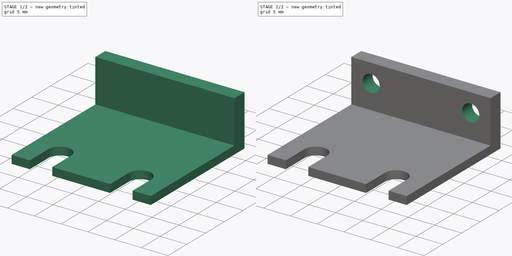
[diagram: build sequence overview — one tinted view per stage of 2, left to right]
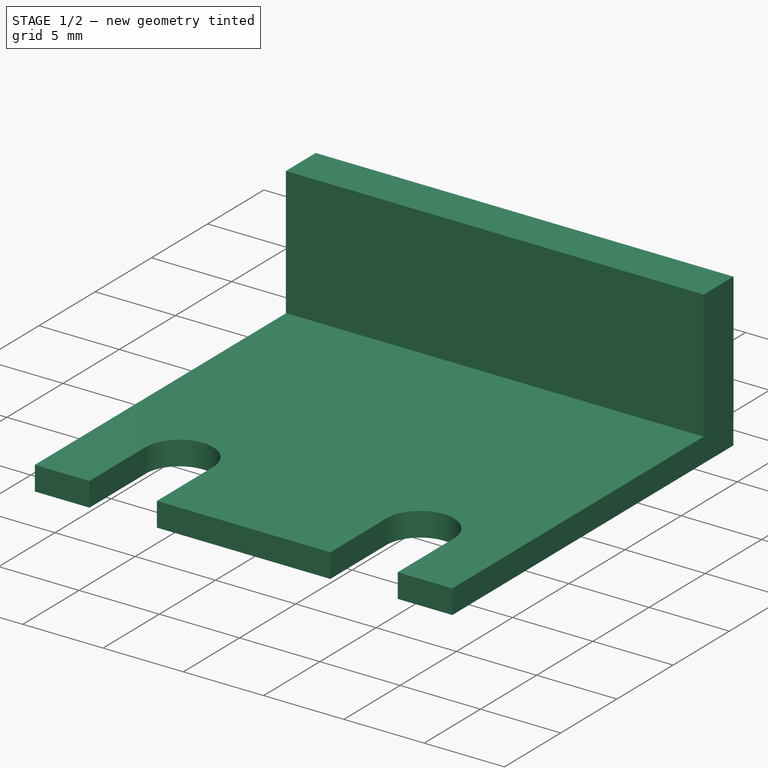
[diagram: stage 1 of 2 — iso view after this stage's code; geometry added in this stage tinted green]
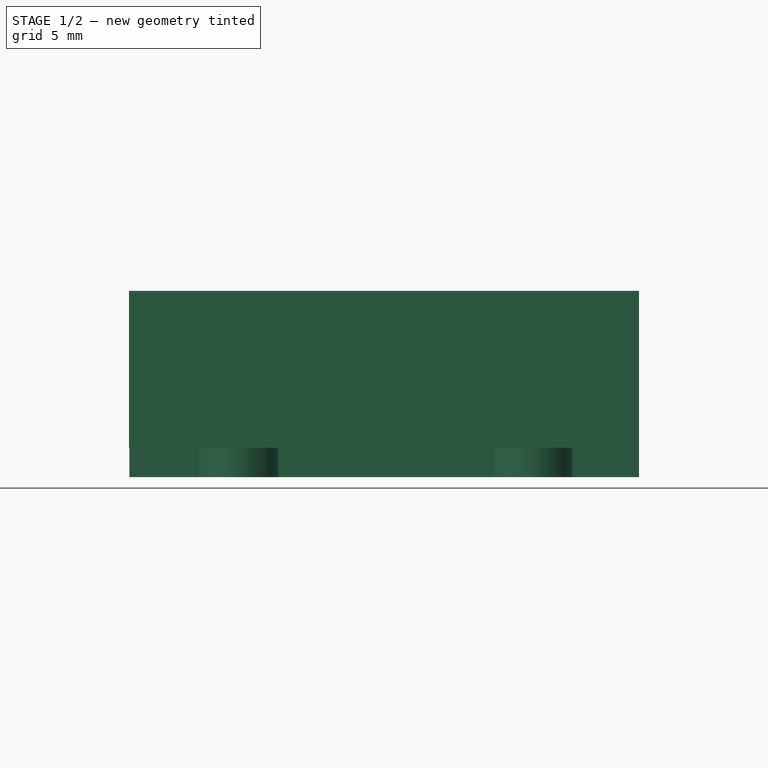
[diagram: stage 1 of 2 — front view after this stage's code; geometry added in this stage tinted green]
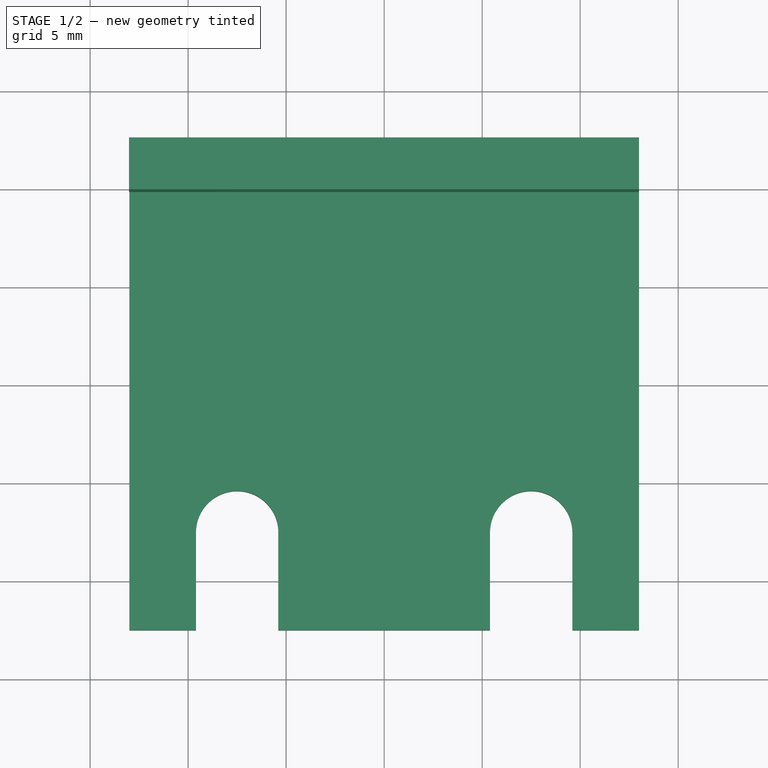
[diagram: stage 1 of 2 — top view after this stage's code; geometry added in this stage tinted green]
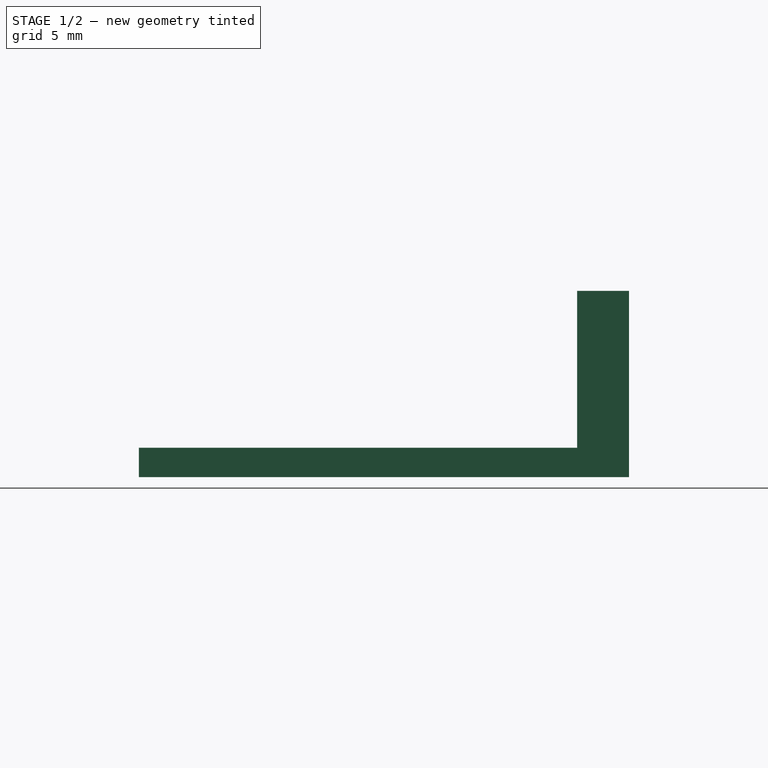
[diagram: stage 1 of 2 — right view after this stage's code; geometry added in this stage tinted green]
FCSTD DOCUMENT  (FreeCAD 0.15R4671 (Git))
Label: end-stop-support-x
License: All rights reserved
LicenseURL: http://es.wikipedia.org/wiki/Todos_los_derechos_reservados
objects: Sketcher::SketchObject×3, PartDesign::Pad×2, PartDesign::Pocket×1
note: 9 computed .brp shape members not serialized (recipe doc carries the construction recipe); baked Part::Feature solids carry a one-line shape summary decoded from their .brp

FEATURE [Sketcher::SketchObject] Sketch
  sketch-geometry (12):
    g0: LineSegment StartX=-13 StartY=12.5 StartZ=0 EndX=13 EndY=12.5 EndZ=0
    g1: LineSegment StartX=13 StartY=12.5 StartZ=0 EndX=13 EndY=-12.5 EndZ=0
    g2: LineSegment StartX=13 StartY=-12.5 StartZ=0 EndX=9.6 EndY=-12.5 EndZ=0
    g3: LineSegment StartX=-13 StartY=-12.5 StartZ=0 EndX=-13 EndY=12.5 EndZ=0
    g4: ArcOfCircle CenterX=-7.5 CenterY=-7.5 CenterZ=0 NormalX=0 NormalY=0 NormalZ=1 Radius=2.1 StartAngle=6.23136 EndAngle=9.4766
    g5: ArcOfCircle CenterX=7.5 CenterY=-7.5 CenterZ=0 NormalX=0 NormalY=0 NormalZ=1 Radius=2.1 StartAngle=6.28271 EndAngle=9.42525
    g6: LineSegment StartX=-9.59718 StartY=-7.60879 StartZ=0 EndX=-9.59718 EndY=-12.5 EndZ=0
    g7: LineSegment StartX=-5.40282 StartY=-7.60879 StartZ=0 EndX=-5.40282 EndY=-12.5 EndZ=0
    g8: LineSegment StartX=-9.59718 StartY=-12.5 StartZ=0 EndX=-13 EndY=-12.5 EndZ=0
    g9: LineSegment StartX=5.4 StartY=-7.50099 StartZ=0 EndX=5.4 EndY=-12.5 EndZ=0
    g10: LineSegment StartX=9.6 StartY=-7.50099 StartZ=0 EndX=9.6 EndY=-12.5 EndZ=0
    g11: LineSegment StartX=5.4 StartY=-12.5 StartZ=0 EndX=-5.40282 EndY=-12.5 EndZ=0
  constraints (31):
    c: Coincident(g0,g1)
    c: Coincident(g1,g2)
    c: Coincident(g8,g3)
    c: Coincident(g3,g0)
    c: Horizontal(g0)
    c: Horizontal(g2)
    c: Vertical(g1)
    c: Vertical(g3)
    c: Symmetric(g0,g1,g-1)
    c: DistanceX(g0) = 26
    c: DistanceY(g1) = -25
    c: Equal(g4,g5)
    c: Radius(g4) = 2.1
    c: Symmetric(g4,g5,g-2)
    c: Distance(g4,g5) = 15
    c: Distance(g4,g0) = 20
    c: Vertical(g6)
    c: Vertical(g7)
    c: Coincident(g4,g7)
    c: Coincident(g4,g6)
    c: Coincident(g11,g7)
    c: PointOnObject(g8,g6)
    c: Tangent(g2,g8)
    c: Vertical(g9)
    c: Vertical(g10)
    c: Coincident(g5,g10)
    c: Coincident(g5,g9)
    c: Coincident(g2,g10)
    c: Coincident(g11,g9)
    c: Tangent(g2,g11)
    c: Coincident(g6,g8)
FEATURE [PartDesign::Pad] Pad
  Length = 1.5
  Length2 = 100
  Sketch = -> Sketch
  Type = 0
FEATURE [Sketcher::SketchObject] Sketch001
  ExternalGeometry = -> [Pad]
  Placement = pos=(0,0,1.5) rot=(0,0,1;0rad)
  Support = -> Pad [Face14]
  sketch-geometry (4):
    g0: LineSegment StartX=-13.0173 StartY=12.5041 StartZ=0 EndX=13 EndY=12.5041 EndZ=0
    g1: LineSegment StartX=13 StartY=12.5041 StartZ=0 EndX=13 EndY=9.8547 EndZ=0
    g2: LineSegment StartX=13 StartY=9.8547 StartZ=0 EndX=-13.0173 EndY=9.8547 EndZ=0
    g3: LineSegment StartX=-13.0173 StartY=9.8547 StartZ=0 EndX=-13.0173 EndY=12.5041 EndZ=0
  constraints (8):
    c: Coincident(g0,g1)
    c: Coincident(g1,g2)
    c: Coincident(g2,g3)
    c: Coincident(g3,g0)
    c: Horizontal(g0)
    c: Horizontal(g2)
    c: Vertical(g1)
    c: Vertical(g3)
FEATURE [PartDesign::Pad] Pad001
  Length = 8
  Length2 = 100
  Sketch = -> Sketch001
  Type = 0
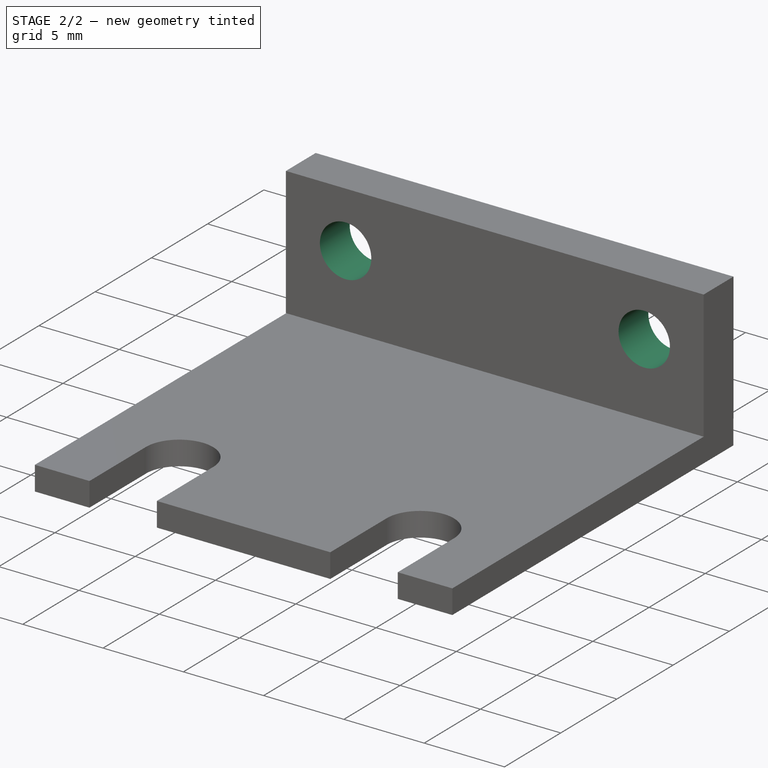
[diagram: stage 2 of 2 — iso view after this stage's code; geometry added in this stage tinted green]
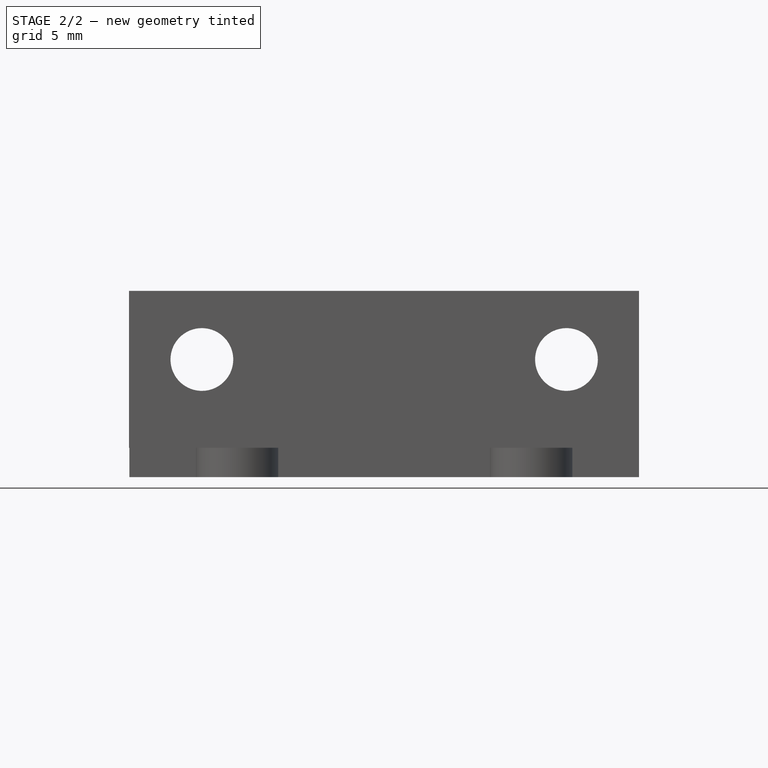
[diagram: stage 2 of 2 — front view after this stage's code; geometry added in this stage tinted green]
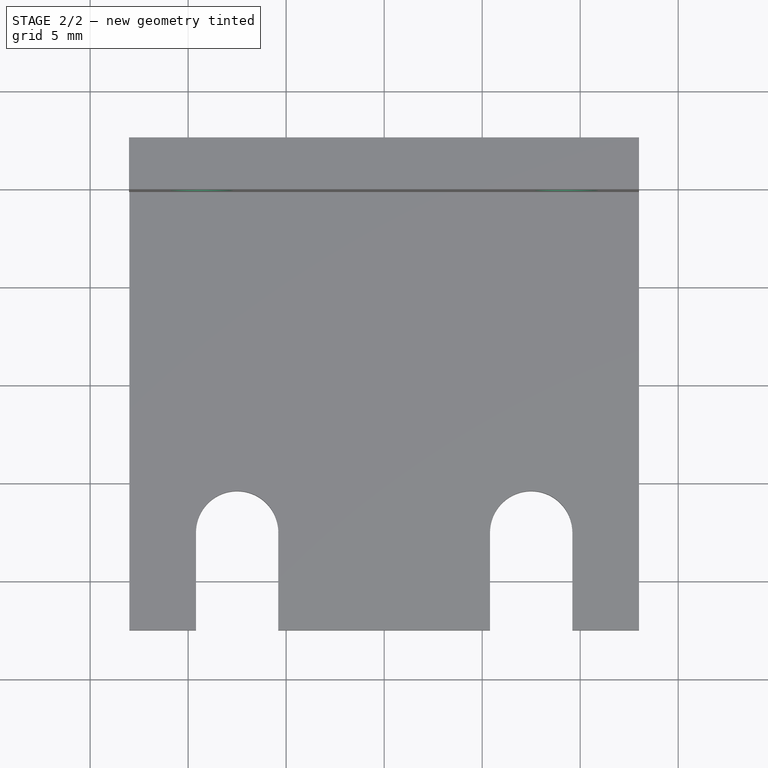
[diagram: stage 2 of 2 — top view after this stage's code; geometry added in this stage tinted green]
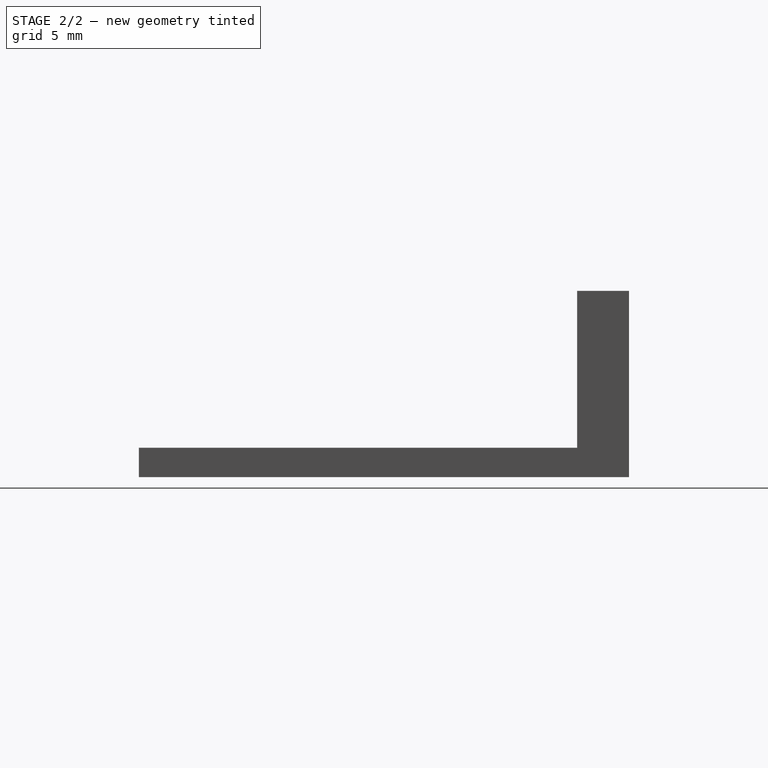
[diagram: stage 2 of 2 — right view after this stage's code; geometry added in this stage tinted green]
FEATURE [Sketcher::SketchObject] Sketch002
  Placement = pos=(0,9.8547,0) rot=(1,0,0;1.5708rad)
  Support = -> Pad001 [Face15]
  sketch-geometry (2):
    g0: Circle CenterX=-9.3 CenterY=6 CenterZ=0 NormalX=0 NormalY=0 NormalZ=1 Radius=1.6
    g1: Circle CenterX=9.3 CenterY=6 CenterZ=0 NormalX=0 NormalY=0 NormalZ=1 Radius=1.6
  constraints (5):
    c: Equal(g0,g1)
    c: Symmetric(g0,g1,g-2)
    c: Radius(g0) = 1.6
    c: DistanceX(g-2,g0) = -9.3
    c: DistanceY(g-1,g0) = 6
FEATURE [PartDesign::Pocket] Pocket  label="end-stop-support-x-final"
  Length = 5
  Sketch = -> Sketch002
  Type = 1
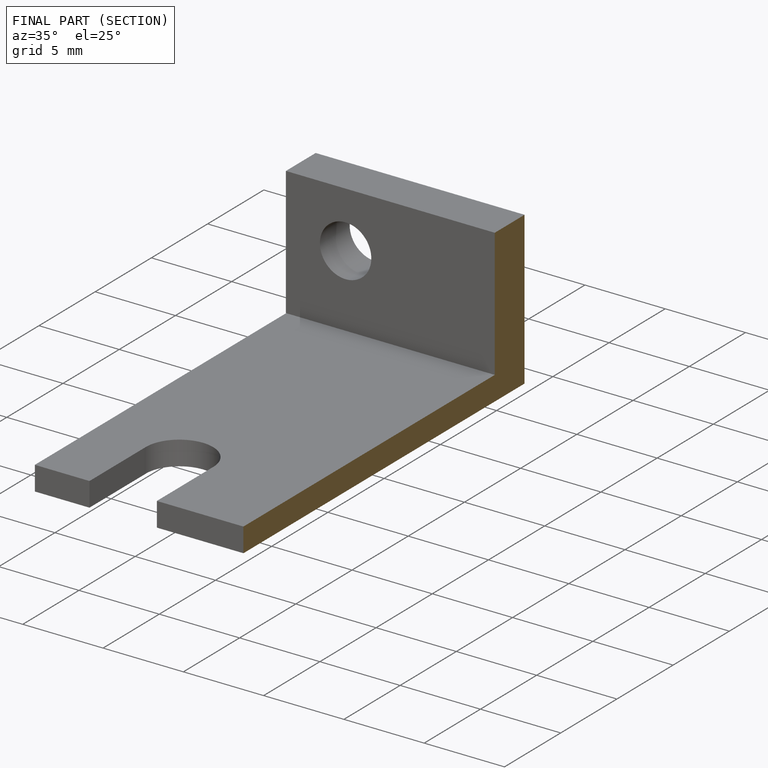
[diagram: finished part — half-section view (interior)]
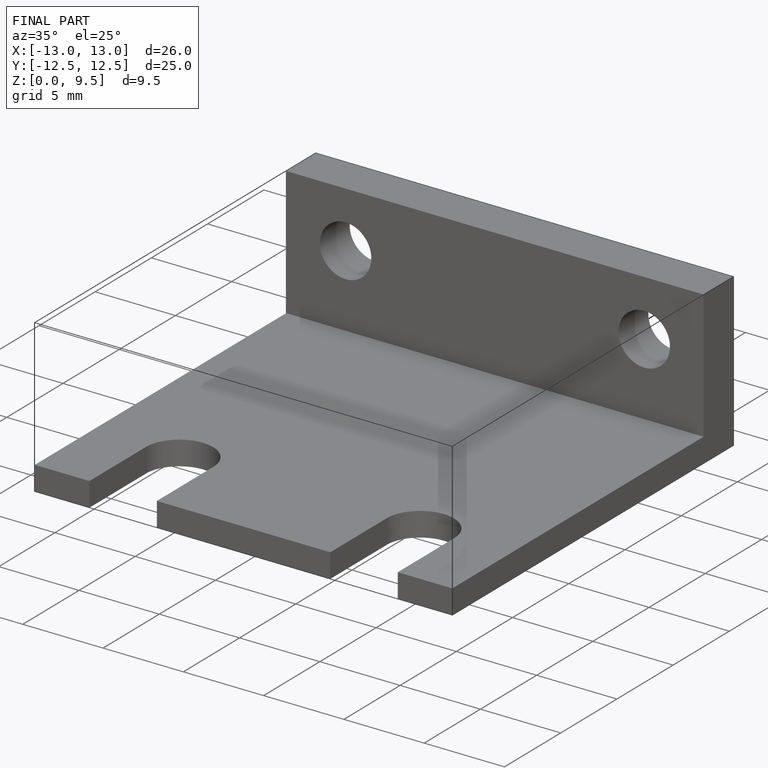
[diagram: finished part — iso view with bounding-box wireframe]
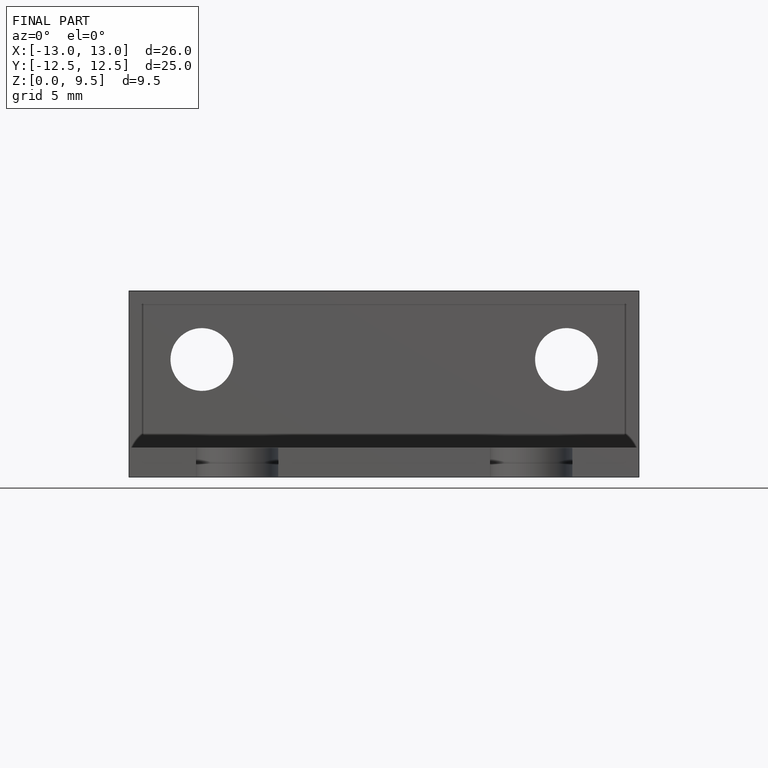
[diagram: finished part — front view with bounding-box wireframe]
